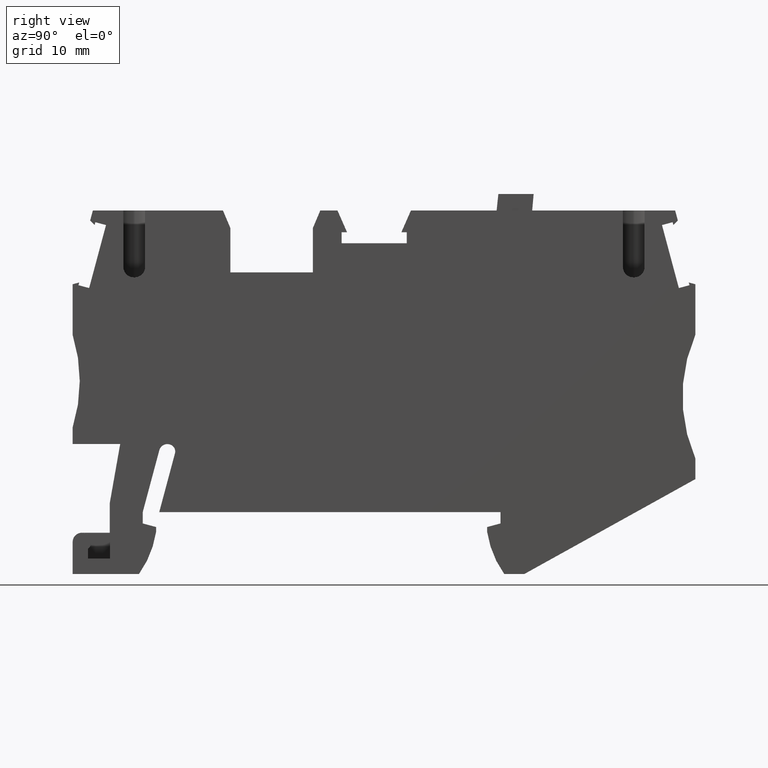
[diagram: clean part render]
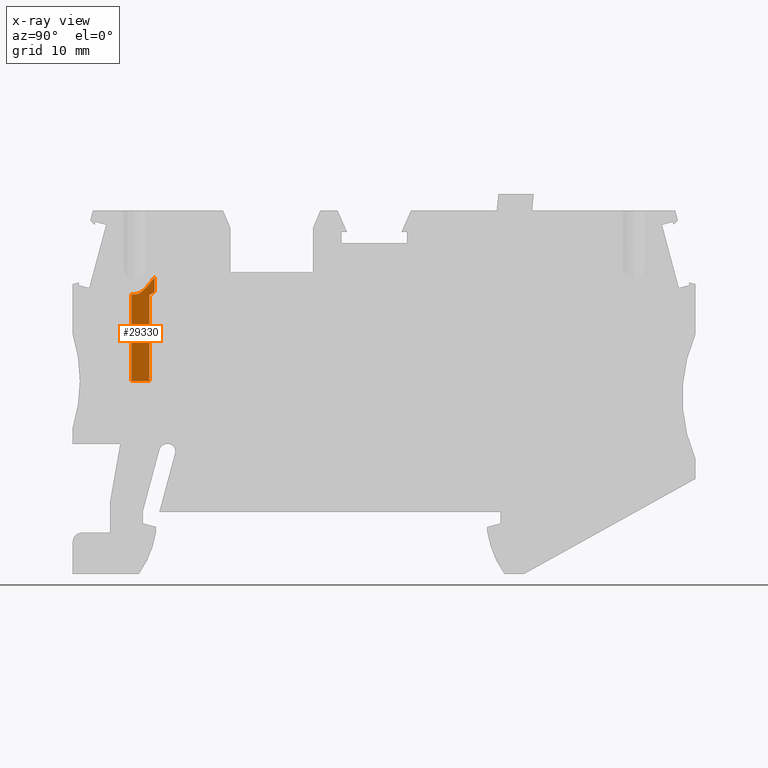
[diagram: x-ray — body ghosted, one internal face saturated and labeled with its STEP entity id]
A machine part, right view, then the same camera in x-ray: the body is ghosted and one INTERNAL B-rep face — a face not visible from any outside direction — is saturated and labeled: STEP entity #29330.
In plain terms, the highlighted planar face has unit normal (-1, 0, -0).
Its self-contained STEP definition (entity closure, byte-faithful):
#9450=CARTESIAN_POINT('',(-14.9183196337143,-17.3500001326314,
52.7200000000042));
#9460=VERTEX_POINT('',#9450);
#9490=CARTESIAN_POINT('',(-14.9183196337144,1.29318777908338E-12,
52.7200000000042));
#9500=DIRECTION('',(9.39526234589039E-15,-1.,8.4563844402727E-18));
#9510=VECTOR('',#9500,1.);
#9520=LINE('',#9490,#9510);
#9530=CARTESIAN_POINT('',(-14.9183196337142,-25.7000000000001,
52.7200000000042));
#9540=VERTEX_POINT('',#9530);
#9550=EDGE_CURVE('',#9460,#9540,#9520,.T.);
#13800=CARTESIAN_POINT('',(-16.4428327783243,-15.6445224466539,
51.2700000000041));
#13810=DIRECTION('',(8.80289585322254E-14,1.,0.));
#13820=DIRECTION('',(-1.,9.7158392442509E-14,-1.24382875640964E-16));
#13830=AXIS2_PLACEMENT_3D('',#13800,#13810,#13820);
#13840=CONICAL_SURFACE('',#13830,2.4,0.523598775598299);
#15420=CARTESIAN_POINT('',(-16.3428327783243,-15.6445224466539,
51.2700000000041));
#15430=DIRECTION('',(9.82847595262712E-14,1.,0.));
#15440=DIRECTION('',(-1.,9.7158392442509E-14,-1.24382875640964E-16));
#15450=AXIS2_PLACEMENT_3D('',#15420,#15430,#15440);
#15460=CONICAL_SURFACE('',#15450,2.4,0.5235987755983);
#15510=CARTESIAN_POINT('',(-16.3428327783258,-17.2899707138443,
52.7200000000042));
#15520=VERTEX_POINT('',#15510);
#15550=CARTESIAN_POINT('',(-16.5335764826809,-18.2945224466541,
52.7200000000042));
#15560=DIRECTION('',(1.24382875640963E-16,-8.45638444027153E-18,-1.));
#15570=DIRECTION('',(1.,-9.71445146547012E-14,1.24382875640964E-16));
#15580=AXIS2_PLACEMENT_3D('',#15550,#15560,#15570);
#15590=PLANE('',#15580);
#15600=CARTESIAN_POINT('',(-16.3428327783258,-17.2899707138443,
52.7200000000042));
#15610=CARTESIAN_POINT('',(-16.3292943042648,-17.2899707138443,
52.7200000000042));
#15620=CARTESIAN_POINT('',(-16.3157351983006,-17.2896419499035,
52.7200000000042));
#15630=CARTESIAN_POINT('',(-16.3021730202063,-17.2889835099416,
52.7200000000042));
#15640=CARTESIAN_POINT('',(-16.2886109178048,-17.2883250736546,
52.7200000000042));
#15650=CARTESIAN_POINT('',(-16.2750460781786,-17.2873369516305,
52.7200000000041));
#15660=CARTESIAN_POINT('',(-16.2614979949154,-17.2860227420375,
52.7200000000041));
#15670=CARTESIAN_POINT('',(-16.2479499538614,-17.2847085365389,
52.7200000000041));
#15680=CARTESIAN_POINT('',(-16.2344189980427,-17.2830682731594,
52.7200000000036));
#15690=CARTESIAN_POINT('',(-16.2209253275624,-17.281110224506,
52.7200000000036));
#15700=CARTESIAN_POINT('',(-16.207431670887,-17.2791521778557,
52.7200000000036));
#15710=CARTESIAN_POINT('',(-16.1939755992327,-17.276876407796,
52.7200000000027));
#15720=CARTESIAN_POINT('',(-16.1805769789593,-17.2742956291562,
52.7200000000027));
#15730=CARTESIAN_POINT('',(-16.1671783490692,-17.2717148486641,
52.7200000000027));
#15740=CARTESIAN_POINT('',(-16.1538374252693,-17.2688291428484,
52.720000000002));
#15750=CARTESIAN_POINT('',(-16.140572925349,-17.2656551301044,
52.720000000002));
#15760=CARTESIAN_POINT('',(-16.127308396885,-17.2624811105303,
52.720000000002));
#15770=CARTESIAN_POINT('',(-16.1141204945249,-17.2590188770328,
52.7200000000027));
#15780=CARTESIAN_POINT('',(-16.101026202225,-17.2552882111528,
52.7200000000027));
#15790=CARTESIAN_POINT('',(-16.0748365913709,-17.247826587005,
52.7200000000027));
#15800=CARTESIAN_POINT('',(-16.0490262357034,-17.2392906463764,
52.7200000000042));
#15810=CARTESIAN_POINT('',(-16.0237019093393,-17.2298624719458,
52.7200000000042));
#15820=CARTESIAN_POINT('',(-15.9983721200633,-17.2204322636887,
52.7200000000042));
#15830=CARTESIAN_POINT('',(-15.9733832442913,-17.2100583322197,
52.7200000000042));
#15840=CARTESIAN_POINT('',(-15.9487352275113,-17.1988613143543,
52.7200000000042));
#15850=CARTESIAN_POINT('',(-15.9240871497142,-17.1876642687702,
52.7200000000042));
#15860=CARTESIAN_POINT('',(-15.8997795169195,-17.1756440894236,
52.7200000000042));
#15870=CARTESIAN_POINT('',(-15.8758117558646,-17.1629171618673,
52.7200000000042));
#15880=CARTESIAN_POINT('',(-15.851843970093,-17.1501902211864,
52.7200000000042));
#15890=CARTESIAN_POINT('',(-15.8282156471718,-17.1367563690852,
52.7200000000042));
#15900=CARTESIAN_POINT('',(-15.8049278200811,-17.1227272977964,
52.7200000000042));
#15910=CARTESIAN_POINT('',(-15.7816400000363,-17.1086982307522,
52.7200000000042));
#15920=CARTESIAN_POINT('',(-15.7586923461197,-17.0940737462579,
52.7200000000042));
#15930=CARTESIAN_POINT('',(-15.7360889070998,-17.0789612580018,
52.7200000000042));
#15940=CARTESIAN_POINT('',(-15.713485495444,-17.063848788041,
52.7200000000042));
#15950=CARTESIAN_POINT('',(-15.6912260600155,-17.0482481285259,
52.7199999999831));
#15960=CARTESIAN_POINT('',(-15.6693183676773,-17.0322631008446,
52.7199999999831));
#15970=CARTESIAN_POINT('',(-15.6474013924807,-17.0162712998919,
52.7199999999831));
#15980=CARTESIAN_POINT('',(-15.625877782421,-16.9999273113839,
52.7199999999946));
#15990=CARTESIAN_POINT('',(-15.6046313106696,-16.9832314368155,
52.7199999999946));
#16000=CARTESIAN_POINT('',(-15.5833821568609,-16.9665334546363,
52.7199999999946));
#16010=CARTESIAN_POINT('',(-15.5624128019957,-16.9494837553501,
52.7200000000042));
#16020=CARTESIAN_POINT('',(-15.5416943880987,-16.9321294559765,
52.7200000000042));
#16030=CARTESIAN_POINT('',(-15.5209758896078,-16.9147750857447,
52.7200000000042));
#16040=CARTESIAN_POINT('',(-15.5005080925218,-16.8971157807207,
52.7200000000042));
#16050=CARTESIAN_POINT('',(-15.4802653746817,-16.8791905324853,
52.7200000000042));
#16060=CARTESIAN_POINT('',(-15.4600226097754,-16.861265242572,
52.7200000000042));
#16070=CARTESIAN_POINT('',(-15.4400047668123,-16.8430737505517,
52.7200000000042));
#16080=CARTESIAN_POINT('',(-15.4201896273423,-16.8246489346476,
52.7200000000042));
#16090=CARTESIAN_POINT('',(-15.4003744667203,-16.8062240990758,
52.7200000000042));
#16100=CARTESIAN_POINT('',(-15.3807619092757,-16.7875657434327,
52.7200000000042));
#16110=CARTESIAN_POINT('',(-15.3613330787209,-16.7687022294481,
52.7200000000042));
#16120=CARTESIAN_POINT('',(-15.3419042439829,-16.749838711402,
52.7200000000042));
#16130=CARTESIAN_POINT('',(-15.3226590746163,-16.7307698888217,
52.7200000000042));
#16140=CARTESIAN_POINT('',(-15.3035818368223,-16.7115208326519,
52.7200000000042));
#16150=CARTESIAN_POINT('',(-15.2845046051132,-16.6922717826218,
52.7200000000042));
#16160=CARTESIAN_POINT('',(-15.2655952695567,-16.6728423917776,
52.7200000000042));
#16170=CARTESIAN_POINT('',(-15.2468409622412,-16.6532553525717,
52.7200000000042));
#16180=CARTESIAN_POINT('',(-15.2093326166634,-16.6140815551596,
52.7200000000042));
#16190=CARTESIAN_POINT('',(-15.1724415775094,-16.574277638415,
52.7200000000042));
#16200=CARTESIAN_POINT('',(-15.1360950238079,-16.5340068529717,
52.7200000000042));
#16210=CARTESIAN_POINT('',(-15.0997486110045,-16.4937362236388,
52.7200000000042));
#16220=CARTESIAN_POINT('',(-15.0639466948452,-16.4529975122142,
52.7200000000042));
#16230=CARTESIAN_POINT('',(-15.0286465360762,-16.4119375714403,
52.7200000000042));
#16240=CARTESIAN_POINT('',(-14.993340265949,-16.3708705221429,
52.7200000000042));
#16250=CARTESIAN_POINT('',(-14.9585762889177,-16.329531059137,
52.7199999999913));
#16260=CARTESIAN_POINT('',(-14.9241559532367,-16.2878377190566,
52.7199999999913));
#16270=CARTESIAN_POINT('',(-14.8897418059278,-16.2461518749489,
52.7199999999913));
#16280=CARTESIAN_POINT('',(-14.8557061716529,-16.2041519230004,
52.7200000000042));
#16290=CARTESIAN_POINT('',(-14.8219933250429,-16.1618897516298,
52.7200000000042));
#16300=CARTESIAN_POINT('',(-14.7882804364147,-16.1196275275853,
52.7200000000042));
#16310=CARTESIAN_POINT('',(-14.7548903243206,-16.077102598662,
52.7200000000042));
#16320=CARTESIAN_POINT('',(-14.7217782805485,-16.0343562448526,
52.7200000000042));
#16330=CARTESIAN_POINT('',(-14.6886662232882,-15.9916098736306,
52.7200000000042));
#16340=CARTESIAN_POINT('',(-14.6558322522868,-15.9486417568259,
52.7200000000042));
#16350=CARTESIAN_POINT('',(-14.6232405174714,-15.9054858852001,
52.7200000000042));
#16360=CARTESIAN_POINT('',(-14.5906487846556,-15.8623300162221,
52.7200000000042));
#16370=CARTESIAN_POINT('',(-14.5582993195889,-15.8189861805476,
52.7200000000042));
#16380=CARTESIAN_POINT('',(-14.5261634209569,-15.7754832993153,
52.7200000000042));
#16390=CARTESIAN_POINT('',(-14.494027531129,-15.7319804300013,
52.7200000000042));
#16400=CARTESIAN_POINT('',(-14.4621052450975,-15.6883183765745,
52.7200000000042));
#16410=CARTESIAN_POINT('',(-14.4303736284334,-15.6445224466536,
52.7200000000042));
#16420=B_SPLINE_CURVE_WITH_KNOTS('',3,(#15600,#15610,#15620,#15630,
#15640,#15650,#15660,#15670,#15680,#15690,#15700,#15710,#15720,#15730,
#15740,#15750,#15760,#15770,#15780,#15790,#15800,#15810,#15820,#15830,
#15840,#15850,#15860,#15870,#15880,#15890,#15900,#15910,#15920,#15930,
#15940,#15950,#15960,#15970,#15980,#15990,#16000,#16010,#16020,#16030,
#16040,#16050,#16060,#16070,#16080,#16090,#16100,#16110,#16120,#16130,
#16140,#16150,#16160,#16170,#16180,#16190,#16200,#16210,#16220,#16230,
#16240,#16250,#16260,#16270,#16280,#16290,#16300,#16310,#16320,#16330,
#16340,#16350,#16360,#16370,#16380,#16390,#16400,#16410),.UNSPECIFIED.,
.F.,.F.,(4,3,3,3,3,3,3,3,3,3,3,3,3,3,3,3,3,3,3,3,3,3,3,3,3,3,3,4),(0.,
0.0406757292667501,0.0814623168599995,0.12233513120195,0.163258542289733
,0.20418848270683,0.245074545196587,0.326492896131902,0.407633290064062,
0.488946970045184,0.570441599555905,0.652022813136785,0.733508724120957,
0.814682725570942,0.895756784196161,0.976852205748989,1.05799532212227,
1.13920112883483,1.22047303014072,1.30180295515499,1.46455056007889,
1.62717702907083,1.78941121384124,1.951586153509,2.11378447957664,
2.27601144746662,2.43826088857958,2.60051567672176),.UNSPECIFIED.);
#16430=SURFACE_CURVE('',#16420,(#15460,#15590),.CURVE_3D.);
#16440=CARTESIAN_POINT('',(-14.4303736284335,-15.6445224466525,
52.720000000004));
#16450=VERTEX_POINT('',#16440);
#16460=EDGE_CURVE('',#15520,#16450,#16430,.T.);
#28690=CARTESIAN_POINT('',(15.6638480474141,-25.6999999999998,
52.7200000000042));
#28700=DIRECTION('',(1.,1.10467190950203E-14,1.24382875640963E-16));
#28710=VECTOR('',#28700,1.);
#28720=LINE('',#28690,#28710);
#28730=CARTESIAN_POINT('',(-16.6678327783269,-25.7000000000001,
52.7200000000042));
#28740=VERTEX_POINT('',#28730);
#28750=EDGE_CURVE('',#28740,#9540,#28720,.T.);
#28760=ORIENTED_EDGE('',*,*,#28750,.F.);
#28770=ORIENTED_EDGE('',*,*,#9550,.T.);
#28780=CARTESIAN_POINT('',(15.6638480474138,0.306622610467798,
52.7200000000042));
#28790=DIRECTION('',(-0.866025403784467,-0.49999999999995,
-1.03490537880703E-16));
#28800=VECTOR('',#28790,1.);
#28810=LINE('',#28780,#28800);
#28820=CARTESIAN_POINT('',(-14.4303736284351,-17.0682843751335,
52.7200000000042));
#28830=VERTEX_POINT('',#28820);
#28840=EDGE_CURVE('',#28830,#9460,#28810,.T.);
#28850=ORIENTED_EDGE('',*,*,#28840,.T.);
#28860=CARTESIAN_POINT('',(-14.430373628433,-6.9902184466547,
52.7200000000042));
#28870=DIRECTION('',(-2.14536721721004E-13,-1.,8.45638444024485E-18));
#28880=VECTOR('',#28870,1.);
#28890=LINE('',#28860,#28880);
#28900=EDGE_CURVE('',#16450,#28830,#28890,.T.);
#28910=ORIENTED_EDGE('',*,*,#28900,.T.);
#28920=ORIENTED_EDGE('',*,*,#16460,.T.);
#28930=CARTESIAN_POINT('',(148.304479673356,-17.2899707138629,
52.7200000000042));
#28940=DIRECTION('',(1.,-1.13048459482457E-13,1.24382875640964E-16));
#28950=VECTOR('',#28940,1.);
#28960=LINE('',#28930,#28950);
#28970=CARTESIAN_POINT('',(-16.4428327783245,-17.2899707138443,
52.7200000000042));
#28980=VERTEX_POINT('',#28970);
#28990=EDGE_CURVE('',#28980,#15520,#28960,.T.);
#29000=ORIENTED_EDGE('',*,*,#28990,.T.);
#29010=CARTESIAN_POINT('',(-16.5335764826811,-18.2945224466541,
52.7200000000042));
#29020=DIRECTION('',(1.24382875640963E-16,-8.45638444027153E-18,-1.));
#29030=DIRECTION('',(1.,-1.13048459482457E-13,1.24382875640964E-16));
#29040=AXIS2_PLACEMENT_3D('',#29010,#29020,#29030);
#29050=PLANE('',#29040);
#29060=CARTESIAN_POINT('',(-16.4428327782957,-17.2899707138443,
52.7200000000042));
#29070=CARTESIAN_POINT('',(-16.4618194178063,-17.289970713845,
52.7200000000042));
#29080=CARTESIAN_POINT('',(-16.4808307742775,-17.2893231063803,
52.7200000000042));
#29090=CARTESIAN_POINT('',(-16.4998034737538,-17.2880329619891,
52.7200000000042));
#29100=CARTESIAN_POINT('',(-16.5187761619401,-17.2867428183656,
52.7200000000042));
#29110=CARTESIAN_POINT('',(-16.5377082460673,-17.2848103415672,
52.7200000000041));
#29120=CARTESIAN_POINT('',(-16.5565377991921,-17.2822606885972,
52.7200000000041));
#29130=CARTESIAN_POINT('',(-16.5753674759552,-17.2797110188858,
52.7200000000041));
#29140=CARTESIAN_POINT('',(-16.5940929611376,-17.276544622085,
52.7200000000041));
#29150=CARTESIAN_POINT('',(-16.6126591516292,-17.2728038427079,
52.7200000000041));
#29160=CARTESIAN_POINT('',(-16.6312255931342,-17.2690630127559,
52.7200000000041));
#29170=CARTESIAN_POINT('',(-16.6496315065029,-17.264748374063,
52.7200000000042));
#29180=CARTESIAN_POINT('',(-16.6678327783192,-17.2599143338473,
52.7200000000042));
#29190=B_SPLINE_CURVE_WITH_KNOTS('',3,(#29060,#29070,#29080,#29090,
#29100,#29110,#29120,#29130,#29140,#29150,#29160,#29170,#29180),
.UNSPECIFIED.,.F.,.F.,(4,3,3,3,4),(0.,0.0570145908897066,
0.114052372413504,0.1709747056699,0.22764265762398),.UNSPECIFIED.);
#29200=SURFACE_CURVE('',#29190,(#29050,#13840),.CURVE_3D.);
#29210=CARTESIAN_POINT('',(-16.6678327783259,-17.2599143338473,
52.7200000000042));
#29220=VERTEX_POINT('',#29210);
#29230=EDGE_CURVE('',#28980,#29220,#29200,.T.);
#29240=ORIENTED_EDGE('',*,*,#29230,.F.);
#29250=CARTESIAN_POINT('',(-16.6678327783261,-18.2945224466541,
52.7200000000042));
#29260=DIRECTION('',(-1.13103970633688E-13,-1.,8.45638444025747E-18));
#29270=VECTOR('',#29260,1.);
#29280=LINE('',#29250,#29270);
#29290=EDGE_CURVE('',#29220,#28740,#29280,.T.);
#29300=ORIENTED_EDGE('',*,*,#29290,.F.);
#29310=EDGE_LOOP('',(#29300,#29240,#29000,#28920,#28910,#28850,#28770,
#28760));
#29320=FACE_OUTER_BOUND('',#29310,.T.);
#29330=ADVANCED_FACE('',(#29320),#15590,.T.);